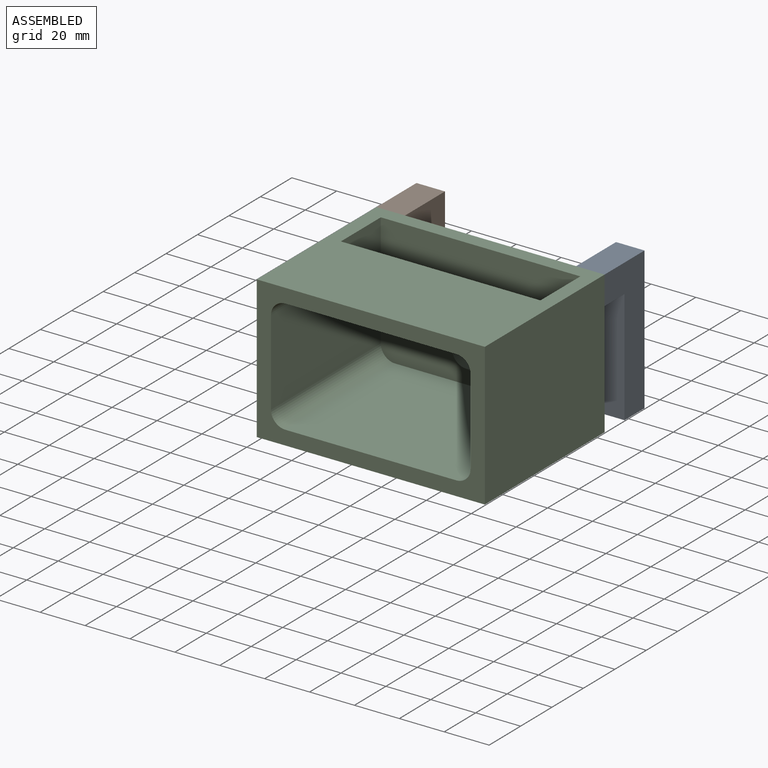
[diagram: assembled view]
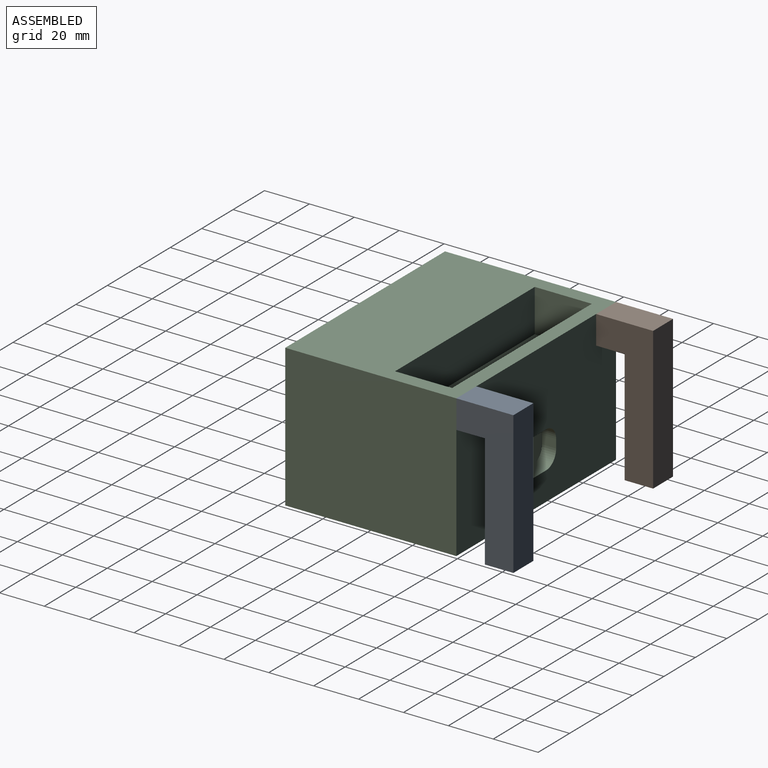
[diagram: assembled view, second angle]
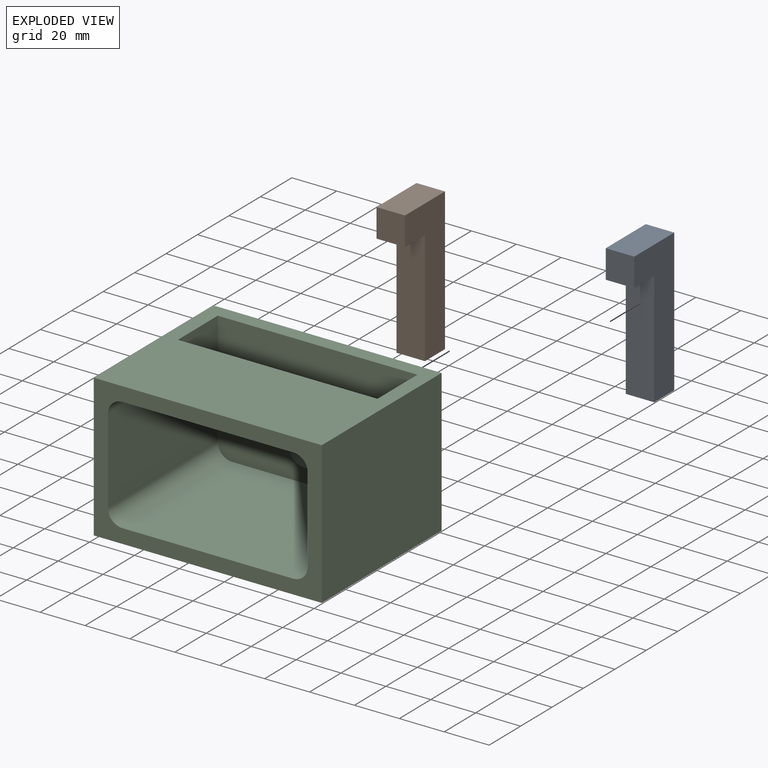
[diagram: exploded view]
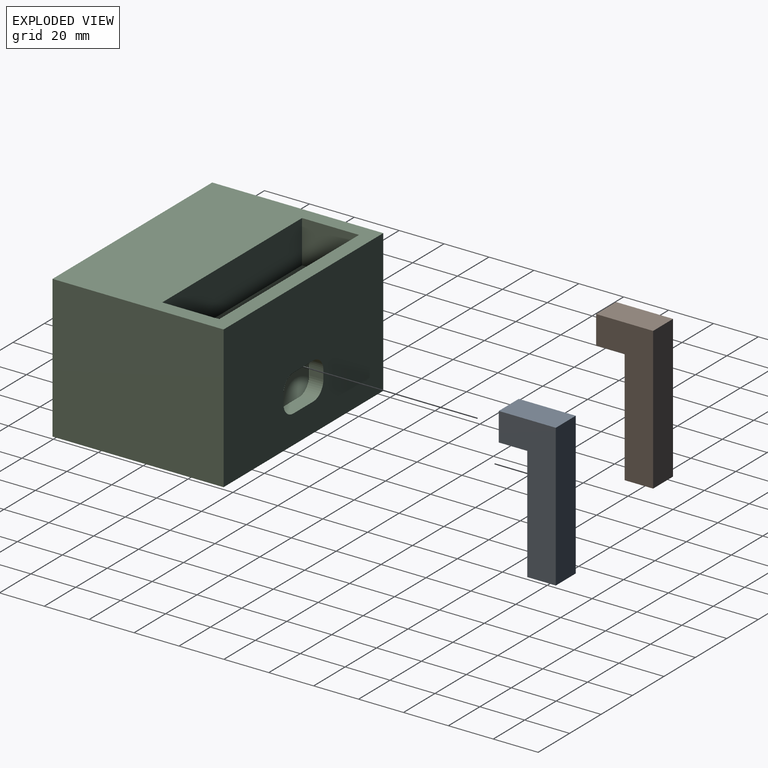
[diagram: exploded view, second angle]
ASSEMBLY  parts=3 mates=2
PART A: 8 faces, bbox 12.7x25.4x63.5 mm
  f0: plane 50.8x12.7mm, normal (0,-1,0), area 645.2mm2, adj f1,f2,f5,f6
  f1: plane 63.5x25.4mm, normal (-1,0,0), area 967.7mm2, adj f0,f3,f4,f5,f6,f7
  f2: plane 63.5x25.4mm, normal (1,0,0), area 967.7mm2, adj f0,f3,f4,f5,f6,f7
  f3: plane 63.5x12.7mm, normal (0,1,0), area 806.5mm2, adj f1,f2,f4,f5
  f4: plane 25.4x12.7mm, normal (0,0,1), area 322.6mm2, adj f1,f2,f3,f7
  f5: plane 12.7x12.7mm, normal (0,0,-1), area 161.3mm2, adj f0,f1,f2,f3
  f6: plane 12.7x12.7mm, normal (0,0,-1), area 161.3mm2, adj f0,f1,f2,f7
  f7: plane 12.7x12.7mm, normal (0,-1,0), area 161.3mm2, adj f1,f2,f4,f6
PART B: same geometry as A
PART C: 34 faces, bbox 101.6x76.2x63.5 mm
  f0: plane 88.9x25.4mm, normal (0,0,1), area 1629mm2, adj f1,f2,f3,f19,f30,f31,f32,f33
  f1: plane 25.4x19.05mm, normal (1,0,0), area 483.9mm2, adj f0,f3,f9,f19
  f2: plane 25.4x19.05mm, normal (-1,0,0), area 483.9mm2, adj f0,f3,f9,f19
  f3: plane 88.9x19.05mm, normal (0,-1,0), area 1693.5mm2, adj f0,f1,f2,f9
  f4: plane 69.85x38.1mm, normal (1,0,0), area 2358.9mm2, adj f6,f11,f17,f18,f28,f29
  f5: plane 76.2x63.5mm, normal (-1,0,0), area 4838.7mm2, adj f6,f8,f9,f10
  f6: plane 101.6x63.5mm, normal (0,-1,0), area 1970.1mm2, adj f4,f5,f7,f9,f10,f11,f12,f13
  f7: plane 76.2x63.5mm, normal (1,0,0), area 4838.7mm2, adj f6,f8,f9,f10
  f8: plane 101.6x63.5mm, normal (0,1,0), area 6066.9mm2, adj f5,f7,f9,f10,f20,f21,f22,f23
  f9: plane 101.6x76.2mm, normal (0,0,1), area 5483.9mm2, adj f1,f2,f3,f5,f6,f7,f8,f19
  f10: plane 101.6x76.2mm, normal (0,0,-1), area 7741.9mm2, adj f5,f6,f7,f8
  f11: cylinder r=6.35mm len=69.85mm, axis (0,-1,0), area 696.7mm2, adj f4,f6,f12,f18
  f12: plane 76.2x69.85mm, normal (0,0,1), area 5322.6mm2, adj f6,f11,f13,f18
  f13: cylinder r=6.35mm len=69.85mm, axis (0,-1,0), area 696.7mm2, adj f6,f12,f14,f18
  f14: plane 69.85x38.1mm, normal (-1,0,0), area 2358.9mm2, adj f6,f13,f15,f18,f28,f29
  f15: cylinder r=6.35mm len=38.1mm, axis (0,-1,0), area 380mm2, adj f6,f14,f16,f29
  f16: plane 76.2x38.1mm, normal (0,0,-1), area 2903.2mm2, adj f6,f15,f17,f29
  f17: cylinder r=6.35mm len=38.1mm, axis (0,-1,0), area 380mm2, adj f4,f6,f16,f29
  f18: plane 88.9x34.93mm, normal (0,-1,0), area 2702.8mm2, adj f4,f11,f12,f13,f14,f20,f21,f22
  f19: plane 88.9x19.05mm, normal (0,1,0), area 1693.5mm2, adj f0,f1,f2,f9
  f20: cylinder r=6.35mm len=6.35mm, axis (0,-1,0), area 63.3mm2, adj f8,f18,f21,f27
  f21: plane 12.7x6.35mm, normal (0,0,1), area 80.6mm2, adj f8,f18,f20,f22
  f22: cylinder r=6.35mm len=6.35mm, axis (0,-1,0), area 63.3mm2, adj f8,f18,f21,f23
  f23: plane 6.35x3.81mm, normal (-1,0,0), area 24.2mm2, adj f8,f18,f22,f24
  f24: cylinder r=6.35mm len=6.35mm, axis (0,-1,0), area 63.3mm2, adj f8,f18,f23,f25
  f25: plane 12.7x6.35mm, normal (0,0,-1), area 80.6mm2, adj f8,f18,f24,f26
  f26: cylinder r=6.35mm len=6.35mm, axis (0,-1,0), area 63.3mm2, adj f8,f18,f25,f27
  f27: plane 6.35x3.81mm, normal (1,0,0), area 24.2mm2, adj f8,f18,f20,f26
  f28: plane 88.9x31.75mm, normal (0,0,-1), area 2193.5mm2, adj f4,f14,f18,f29,f30,f31,f32,f33
  f29: plane 88.9x15.88mm, normal (0,-1,0), area 1394mm2, adj f4,f14,f15,f16,f17,f28
  f30: plane 7.62x3.18mm, normal (1,0,0), area 24.2mm2, adj f0,f28,f31,f33
  f31: plane 82.55x3.18mm, normal (0,1,0), area 262.1mm2, adj f0,f28,f30,f32
  f32: plane 7.62x3.18mm, normal (-1,0,0), area 24.2mm2, adj f0,f28,f31,f33
  f33: plane 82.55x3.18mm, normal (0,-1,0), area 262.1mm2, adj f0,f28,f30,f32
PLACE A t=(3.88,29.88,3.76)mm
PLACE B t=(-85.02,29.88,3.76)mm
PLACE C t=(-18.66,9.38,3.76)mm fixed
MATE fastened B.f7 <-> C.f8  axis (0,-1,0) through (-119.11,41.29,67.26)mm
MATE fastened C.f8 <-> A.f7  axis (0,1,0) through (-17.51,41.29,67.26)mm
